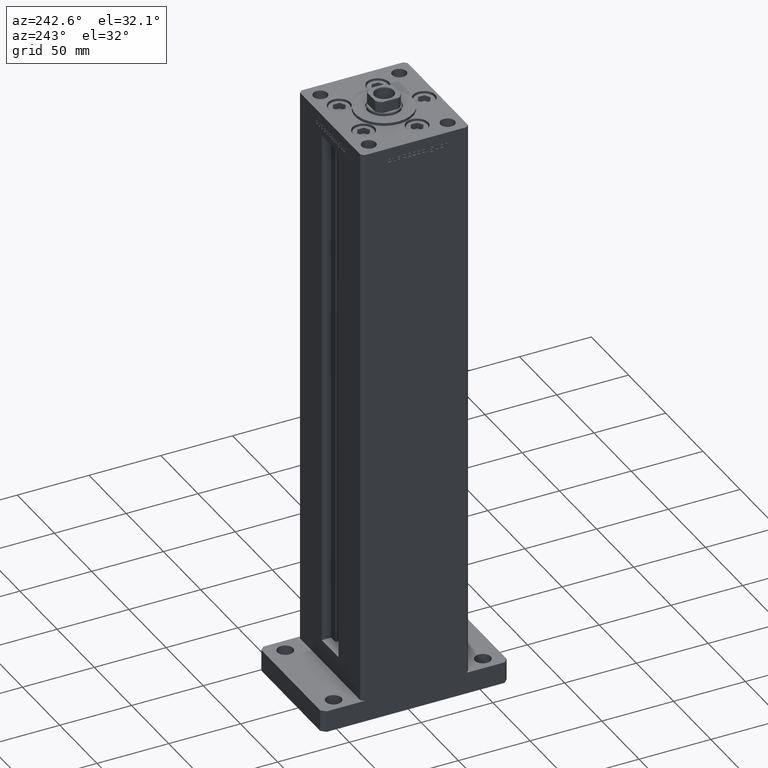
[diagram: clean part render]
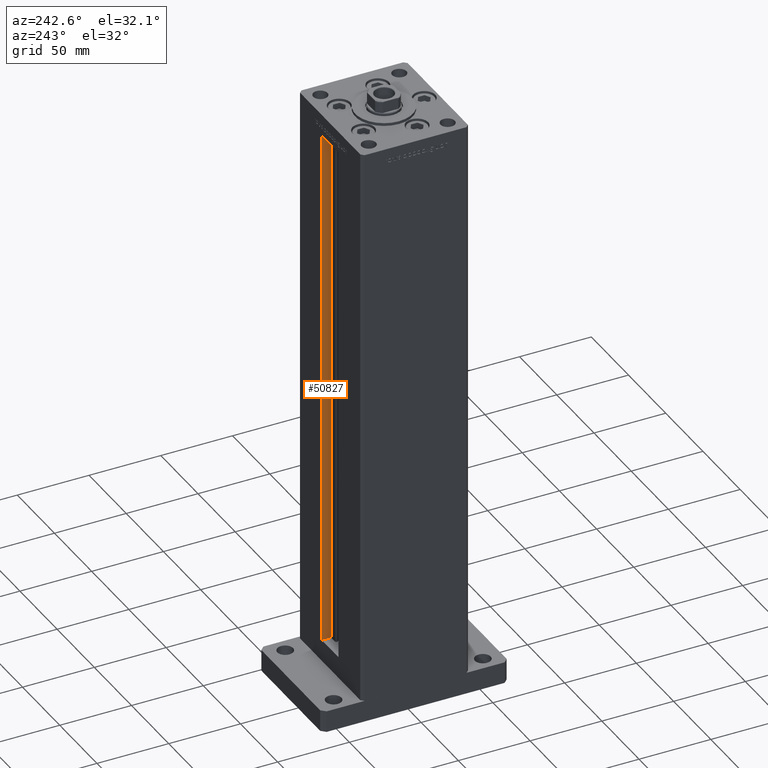
[diagram: same view with one face highlighted and labeled with its STEP entity id]
A machine part, auxiliary view. The second image highlights one B-rep face of the part: STEP entity #50827.
In plain terms, the highlighted planar face has unit normal (1, 0, 0).
Its self-contained STEP definition (entity closure, byte-faithful):
#2195 = DIRECTION ( 'NONE',  ( 1.000000000000000000, -0.000000000000000000, 0.000000000000000000 ) ) ;
#2825 = ORIENTED_EDGE ( 'NONE', *, *, #9461, .F. ) ;
#2835 = VECTOR ( 'NONE', #15039, 1000.000000000000000 ) ;
#3620 = LINE ( 'NONE', #40861, #2835 ) ;
#4154 = LINE ( 'NONE', #16640, #52307 ) ;
#5626 = CARTESIAN_POINT ( 'NONE',  ( 11.25000000000000000, 37.50000000000000000, 0.000000000000000000 ) ) ;
#9461 = EDGE_CURVE ( 'NONE', #26860, #26184, #20552, .T. ) ;
#10081 = FACE_OUTER_BOUND ( 'NONE', #48629, .T. ) ;
#11728 = VERTEX_POINT ( 'NONE', #52642 ) ;
#13612 = DIRECTION ( 'NONE',  ( 0.000000000000000000, 0.000000000000000000, -1.000000000000000000 ) ) ;
#15039 = DIRECTION ( 'NONE',  ( 0.000000000000000000, 1.000000000000000000, 0.000000000000000000 ) ) ;
#16200 = DIRECTION ( 'NONE',  ( -0.000000000000000000, -1.000000000000000000, 0.000000000000000000 ) ) ;
#16640 = CARTESIAN_POINT ( 'NONE',  ( 11.25000000000000000, 30.99999999999999289, 0.000000000000000000 ) ) ;
#17236 = VECTOR ( 'NONE', #25903, 1000.000000000000000 ) ;
#19296 = ORIENTED_EDGE ( 'NONE', *, *, #25219, .T. ) ;
#20104 = EDGE_CURVE ( 'NONE', #26184, #47321, #48853, .T. ) ;
#20552 = LINE ( 'NONE', #21815, #17236 ) ;
#21815 = CARTESIAN_POINT ( 'NONE',  ( 11.25000000000000000, 37.50000000000000000, 0.000000000000000000 ) ) ;
#25219 = EDGE_CURVE ( 'NONE', #11728, #47321, #4154, .T. ) ;
#25253 = VECTOR ( 'NONE', #16200, 1000.000000000000000 ) ;
#25903 = DIRECTION ( 'NONE',  ( -0.000000000000000000, -0.000000000000000000, 1.000000000000000000 ) ) ;
#26184 = VERTEX_POINT ( 'NONE', #36559 ) ;
#26860 = VERTEX_POINT ( 'NONE', #5626 ) ;
#30725 = CARTESIAN_POINT ( 'NONE',  ( 11.25000000000000000, 30.99999999999999289, 0.000000000000000000 ) ) ;
#30986 = PLANE ( 'NONE',  #46284 ) ;
#32957 = DIRECTION ( 'NONE',  ( -0.000000000000000000, -0.000000000000000000, 1.000000000000000000 ) ) ;
#34159 = ORIENTED_EDGE ( 'NONE', *, *, #20104, .F. ) ;
#36559 = CARTESIAN_POINT ( 'NONE',  ( 11.24999999999999289, 37.50000000000000000, 368.5000000000000000 ) ) ;
#37135 = CARTESIAN_POINT ( 'NONE',  ( 11.25000000000000000, 0.000000000000000000, 368.5000000000000000 ) ) ;
#40861 = CARTESIAN_POINT ( 'NONE',  ( 11.25000000000000000, 30.99999999999999289, 0.000000000000000000 ) ) ;
#43317 = CARTESIAN_POINT ( 'NONE',  ( 11.25000000000000000, 30.99999999999999289, 368.5000000000000000 ) ) ;
#46284 = AXIS2_PLACEMENT_3D ( 'NONE', #30725, #2195, #13612 ) ;
#47321 = VERTEX_POINT ( 'NONE', #43317 ) ;
#47458 = EDGE_CURVE ( 'NONE', #11728, #26860, #3620, .T. ) ;
#47998 = ORIENTED_EDGE ( 'NONE', *, *, #47458, .F. ) ;
#48629 = EDGE_LOOP ( 'NONE', ( #2825, #47998, #19296, #34159 ) ) ;
#48853 = LINE ( 'NONE', #37135, #25253 ) ;
#50827 = ADVANCED_FACE ( 'NONE', ( #10081 ), #30986, .F. ) ;
#52307 = VECTOR ( 'NONE', #32957, 1000.000000000000000 ) ;
#52642 = CARTESIAN_POINT ( 'NONE',  ( 11.25000000000000000, 30.99999999999999289, 0.000000000000000000 ) ) ;